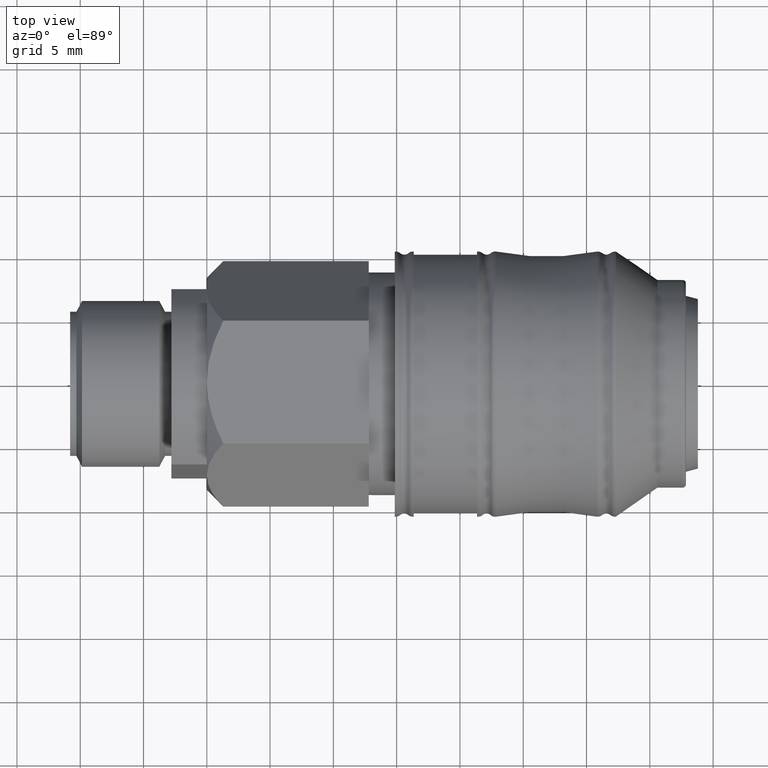
[diagram: clean part render]
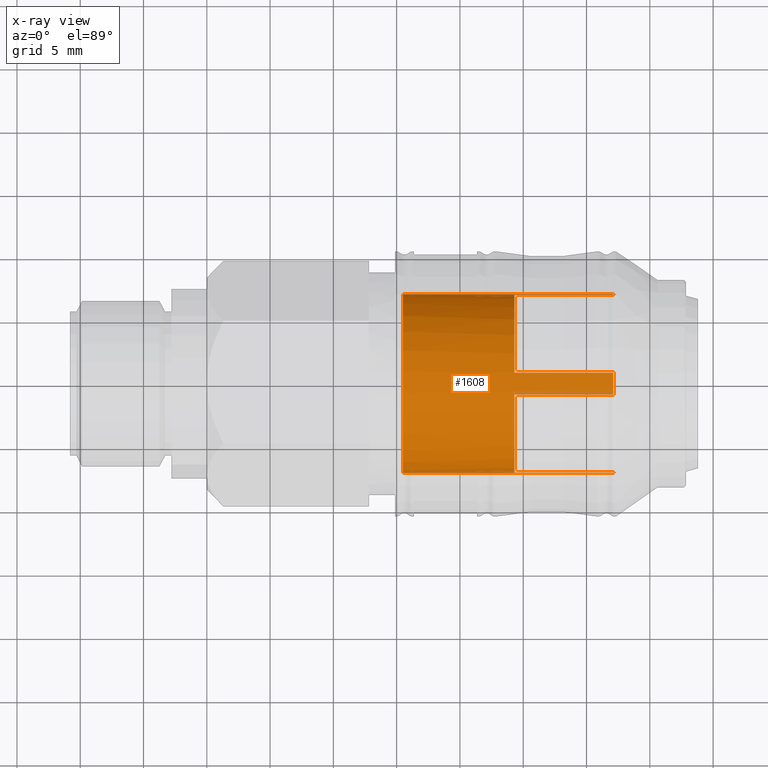
[diagram: x-ray — body ghosted, one internal face saturated and labeled with its STEP entity id]
A machine part, top view, then the same camera in x-ray: the body is ghosted and one INTERNAL B-rep face — a face not visible from any outside direction — is saturated and labeled: STEP entity #1608.
In plain terms, the highlighted cylindrical surface (bore or boss wall) has radius 7.075 mm, axis along (1, 0, 0).
Its self-contained STEP definition (entity closure, byte-faithful):
#890=CARTESIAN_POINT('',(24.299999999999997,-7.035135037794231,0.750000000000001));
#891=VERTEX_POINT('',#890);
#898=CARTESIAN_POINT('',(32.107179676972443,-7.035135037794232,0.750000000000001));
#899=VERTEX_POINT('',#898);
#900=CARTESIAN_POINT('',(32.107179676972443,-7.035135037794231,0.750000000000001));
#901=DIRECTION('',(-1.0,0.0,0.0));
#902=VECTOR('',#901,7.807179676972446);
#903=LINE('',#900,#902);
#904=EDGE_CURVE('',#899,#891,#903,.T.);
#1081=CARTESIAN_POINT('',(24.299999999999997,7.035135037794231,-0.750000000000001));
#1082=VERTEX_POINT('',#1081);
#1089=CARTESIAN_POINT('',(32.107179676972443,7.035135037794232,-0.750000000000001));
#1090=VERTEX_POINT('',#1089);
#1091=CARTESIAN_POINT('',(32.107179676972443,7.035135037794231,-0.750000000000001));
#1092=DIRECTION('',(-1.0,0.0,0.0));
#1093=VECTOR('',#1092,7.807179676972446);
#1094=LINE('',#1091,#1093);
#1095=EDGE_CURVE('',#1090,#1082,#1094,.T.);
#1200=CARTESIAN_POINT('',(32.107179676972443,-7.035135037794232,-0.749999999999999));
#1201=VERTEX_POINT('',#1200);
#1215=CARTESIAN_POINT('',(24.299999999999997,-7.035135037794231,-0.749999999999999));
#1216=VERTEX_POINT('',#1215);
#1217=CARTESIAN_POINT('',(24.299999999999997,-7.035135037794231,-0.749999999999999));
#1218=DIRECTION('',(1.0,0.0,0.0));
#1219=VECTOR('',#1218,7.807179676972446);
#1220=LINE('',#1217,#1219);
#1221=EDGE_CURVE('',#1216,#1201,#1220,.T.);
#1279=CARTESIAN_POINT('',(32.107179676972443,7.035135037794232,0.75));
#1280=VERTEX_POINT('',#1279);
#1294=CARTESIAN_POINT('',(24.299999999999997,7.035135037794231,0.75));
#1295=VERTEX_POINT('',#1294);
#1296=CARTESIAN_POINT('',(24.299999999999997,7.035135037794231,0.75));
#1297=DIRECTION('',(1.0,0.0,0.0));
#1298=VECTOR('',#1297,7.807179676972446);
#1299=LINE('',#1296,#1298);
#1300=EDGE_CURVE('',#1295,#1280,#1299,.T.);
#1490=CARTESIAN_POINT('',(23.803589838486218,0.0,0.0));
#1491=DIRECTION('',(1.0,0.0,0.0));
#1492=DIRECTION('',(0.0,1.0,0.0));
#1493=AXIS2_PLACEMENT_3D('',#1490,#1491,#1492);
#1494=CYLINDRICAL_SURFACE('',#1493,7.075000000000003);
#1495=CARTESIAN_POINT('',(24.299999999999997,0.749999999999999,-7.035135037794231));
#1496=VERTEX_POINT('',#1495);
#1497=CARTESIAN_POINT('',(32.107179676972443,0.749999999999999,-7.035135037794232));
#1498=VERTEX_POINT('',#1497);
#1499=CARTESIAN_POINT('',(24.299999999999997,0.749999999999999,-7.035135037794231));
#1500=DIRECTION('',(1.0,0.0,0.0));
#1501=VECTOR('',#1500,7.807179676972446);
#1502=LINE('',#1499,#1501);
#1503=EDGE_CURVE('',#1496,#1498,#1502,.T.);
#1504=ORIENTED_EDGE('',*,*,#1503,.T.);
#1505=CARTESIAN_POINT('',(32.107179676972443,-0.750000000000001,-7.035135037794232));
#1506=VERTEX_POINT('',#1505);
#1507=CARTESIAN_POINT('',(32.107179676972443,0.0,0.0));
#1508=DIRECTION('',(1.0,0.0,0.0));
#1509=DIRECTION('',(0.0,1.0,0.0));
#1510=AXIS2_PLACEMENT_3D('',#1507,#1508,#1509);
#1511=CIRCLE('',#1510,7.075000000000004);
#1512=EDGE_CURVE('',#1506,#1498,#1511,.T.);
#1513=ORIENTED_EDGE('',*,*,#1512,.F.);
#1514=CARTESIAN_POINT('',(24.299999999999997,-0.750000000000001,-7.035135037794231));
#1515=VERTEX_POINT('',#1514);
#1516=CARTESIAN_POINT('',(32.107179676972443,-0.750000000000001,-7.035135037794231));
#1517=DIRECTION('',(-1.0,0.0,0.0));
#1518=VECTOR('',#1517,7.807179676972446);
#1519=LINE('',#1516,#1518);
#1520=EDGE_CURVE('',#1506,#1515,#1519,.T.);
#1521=ORIENTED_EDGE('',*,*,#1520,.T.);
#1522=CARTESIAN_POINT('',(24.300000000000001,0.0,0.0));
#1523=DIRECTION('',(-1.0,0.0,0.0));
#1524=DIRECTION('',(0.0,1.0,0.0));
#1525=AXIS2_PLACEMENT_3D('',#1522,#1523,#1524);
#1526=CIRCLE('',#1525,7.075000000000003);
#1527=EDGE_CURVE('',#1515,#1216,#1526,.T.);
#1528=ORIENTED_EDGE('',*,*,#1527,.T.);
#1529=ORIENTED_EDGE('',*,*,#1221,.T.);
#1530=CARTESIAN_POINT('',(32.107179676972443,0.0,0.0));
#1531=DIRECTION('',(1.0,0.0,0.0));
#1532=DIRECTION('',(0.0,1.0,0.0));
#1533=AXIS2_PLACEMENT_3D('',#1530,#1531,#1532);
#1534=CIRCLE('',#1533,7.075000000000004);
#1535=EDGE_CURVE('',#899,#1201,#1534,.T.);
#1536=ORIENTED_EDGE('',*,*,#1535,.F.);
#1537=ORIENTED_EDGE('',*,*,#904,.T.);
#1538=CARTESIAN_POINT('',(24.299999999999997,-0.75,7.035135037794231));
#1539=VERTEX_POINT('',#1538);
#1540=CARTESIAN_POINT('',(24.300000000000001,0.0,0.0));
#1541=DIRECTION('',(-1.0,0.0,0.0));
#1542=DIRECTION('',(0.0,1.0,0.0));
#1543=AXIS2_PLACEMENT_3D('',#1540,#1541,#1542);
#1544=CIRCLE('',#1543,7.075000000000003);
#1545=EDGE_CURVE('',#891,#1539,#1544,.T.);
#1546=ORIENTED_EDGE('',*,*,#1545,.T.);
#1547=CARTESIAN_POINT('',(32.107179676972443,-0.75,7.035135037794232));
#1548=VERTEX_POINT('',#1547);
#1549=CARTESIAN_POINT('',(24.299999999999997,-0.75,7.035135037794231));
#1550=DIRECTION('',(1.0,0.0,0.0));
#1551=VECTOR('',#1550,7.807179676972446);
#1552=LINE('',#1549,#1551);
#1553=EDGE_CURVE('',#1539,#1548,#1552,.T.);
#1554=ORIENTED_EDGE('',*,*,#1553,.T.);
#1555=CARTESIAN_POINT('',(32.107179676972443,0.75,7.035135037794232));
#1556=VERTEX_POINT('',#1555);
#1557=CARTESIAN_POINT('',(32.107179676972443,0.0,0.0));
#1558=DIRECTION('',(1.0,0.0,0.0));
#1559=DIRECTION('',(0.0,1.0,0.0));
#1560=AXIS2_PLACEMENT_3D('',#1557,#1558,#1559);
#1561=CIRCLE('',#1560,7.075000000000004);
#1562=EDGE_CURVE('',#1556,#1548,#1561,.T.);
#1563=ORIENTED_EDGE('',*,*,#1562,.F.);
#1564=CARTESIAN_POINT('',(24.299999999999997,0.75,7.035135037794231));
#1565=VERTEX_POINT('',#1564);
#1566=CARTESIAN_POINT('',(32.107179676972443,0.75,7.035135037794231));
#1567=DIRECTION('',(-1.0,0.0,0.0));
#1568=VECTOR('',#1567,7.807179676972446);
#1569=LINE('',#1566,#1568);
#1570=EDGE_CURVE('',#1556,#1565,#1569,.T.);
#1571=ORIENTED_EDGE('',*,*,#1570,.T.);
#1572=CARTESIAN_POINT('',(24.300000000000001,0.0,0.0));
#1573=DIRECTION('',(-1.0,0.0,0.0));
#1574=DIRECTION('',(0.0,1.0,0.0));
#1575=AXIS2_PLACEMENT_3D('',#1572,#1573,#1574);
#1576=CIRCLE('',#1575,7.075000000000003);
#1577=EDGE_CURVE('',#1565,#1295,#1576,.T.);
#1578=ORIENTED_EDGE('',*,*,#1577,.T.);
#1579=ORIENTED_EDGE('',*,*,#1300,.T.);
#1580=CARTESIAN_POINT('',(32.107179676972443,0.0,0.0));
#1581=DIRECTION('',(1.0,0.0,0.0));
#1582=DIRECTION('',(0.0,1.0,0.0));
#1583=AXIS2_PLACEMENT_3D('',#1580,#1581,#1582);
#1584=CIRCLE('',#1583,7.075000000000004);
#1585=EDGE_CURVE('',#1090,#1280,#1584,.T.);
#1586=ORIENTED_EDGE('',*,*,#1585,.F.);
#1587=ORIENTED_EDGE('',*,*,#1095,.T.);
#1588=CARTESIAN_POINT('',(24.300000000000001,0.0,0.0));
#1589=DIRECTION('',(-1.0,0.0,0.0));
#1590=DIRECTION('',(0.0,1.0,0.0));
#1591=AXIS2_PLACEMENT_3D('',#1588,#1589,#1590);
#1592=CIRCLE('',#1591,7.075000000000003);
#1593=EDGE_CURVE('',#1082,#1496,#1592,.T.);
#1594=ORIENTED_EDGE('',*,*,#1593,.T.);
#1595=EDGE_LOOP('',(#1504,#1513,#1521,#1528,#1529,#1536,#1537,#1546,#1554,#1563,#1571,#1578,#1579,#1586,#1587,#1594));
#1596=FACE_OUTER_BOUND('',#1595,.T.);
#1597=CARTESIAN_POINT('',(15.499999999999996,7.075,0.0));
#1598=VERTEX_POINT('',#1597);
#1599=CARTESIAN_POINT('',(15.499999999999996,0.0,0.0));
#1600=DIRECTION('',(1.0,0.0,0.0));
#1601=DIRECTION('',(0.0,1.0,0.0));
#1602=AXIS2_PLACEMENT_3D('',#1599,#1600,#1601);
#1603=CIRCLE('',#1602,7.075);
#1604=EDGE_CURVE('',#1598,#1598,#1603,.T.);
#1605=ORIENTED_EDGE('',*,*,#1604,.T.);
#1606=EDGE_LOOP('',(#1605));
#1607=FACE_BOUND('',#1606,.T.);
#1608=ADVANCED_FACE('',(#1596,#1607),#1494,.T.);